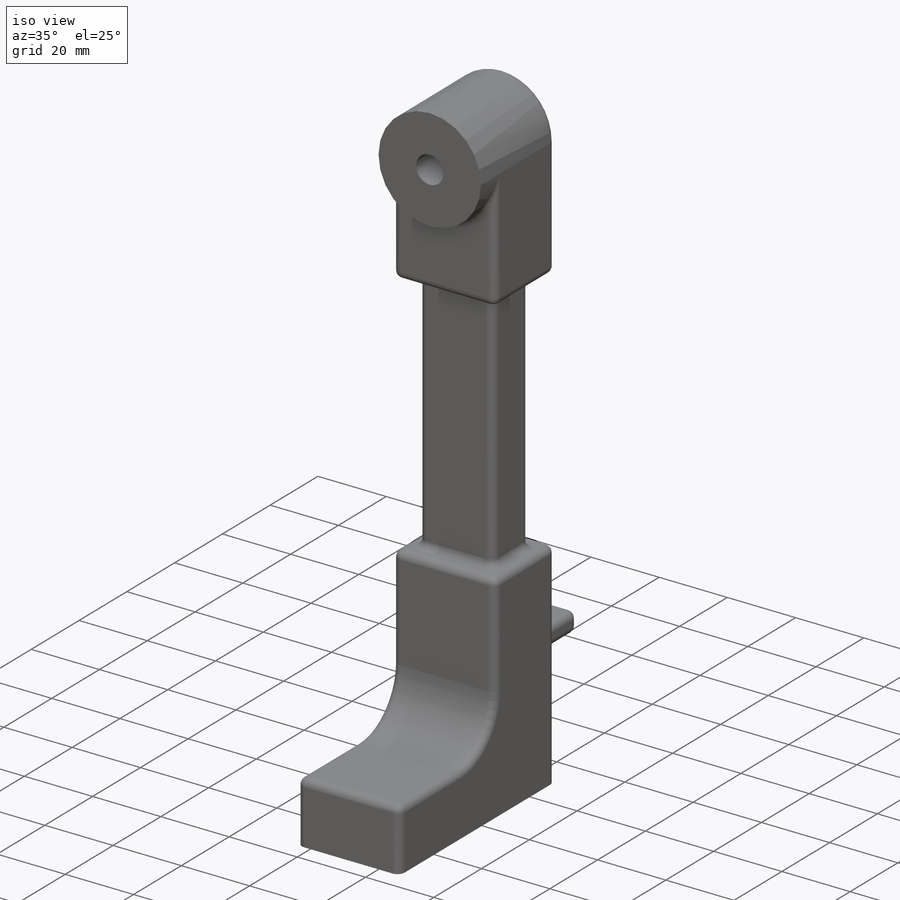
[diagram: iso view]
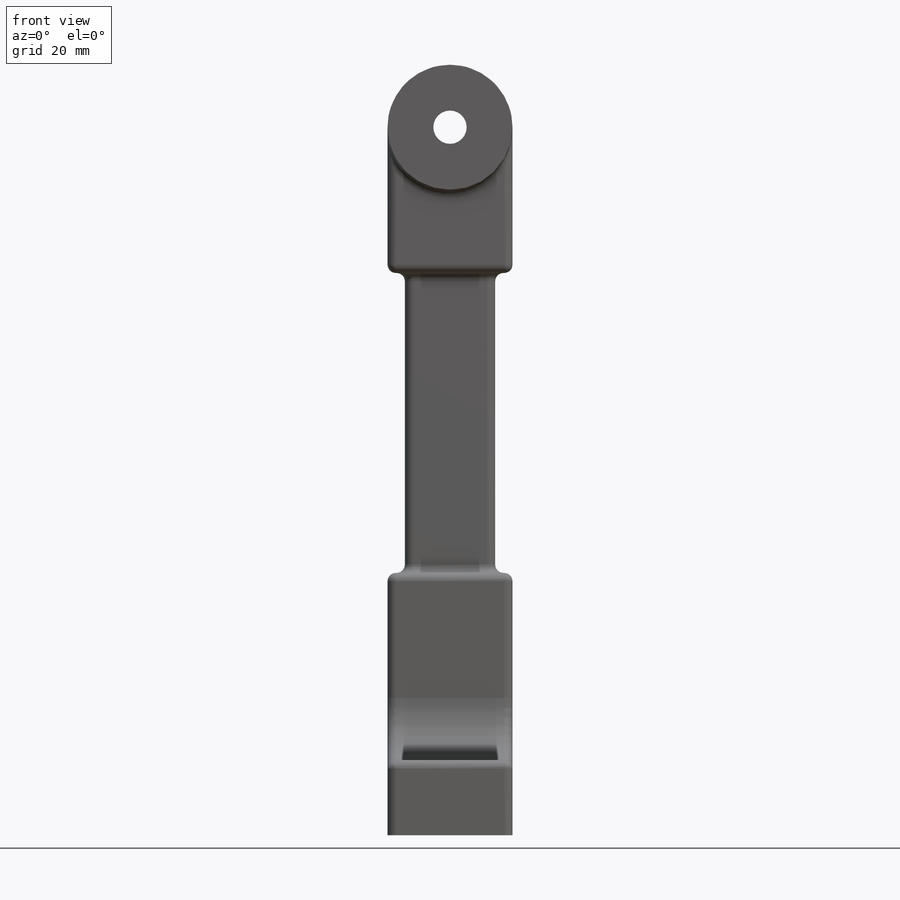
[diagram: front view]
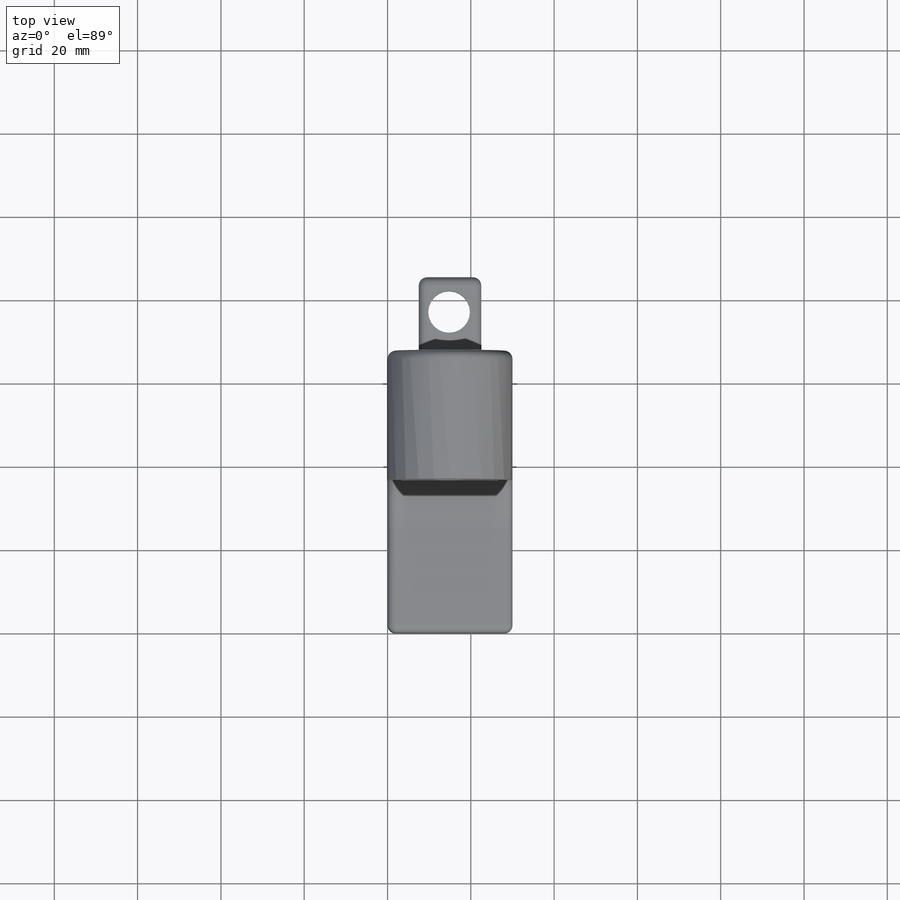
[diagram: top view]
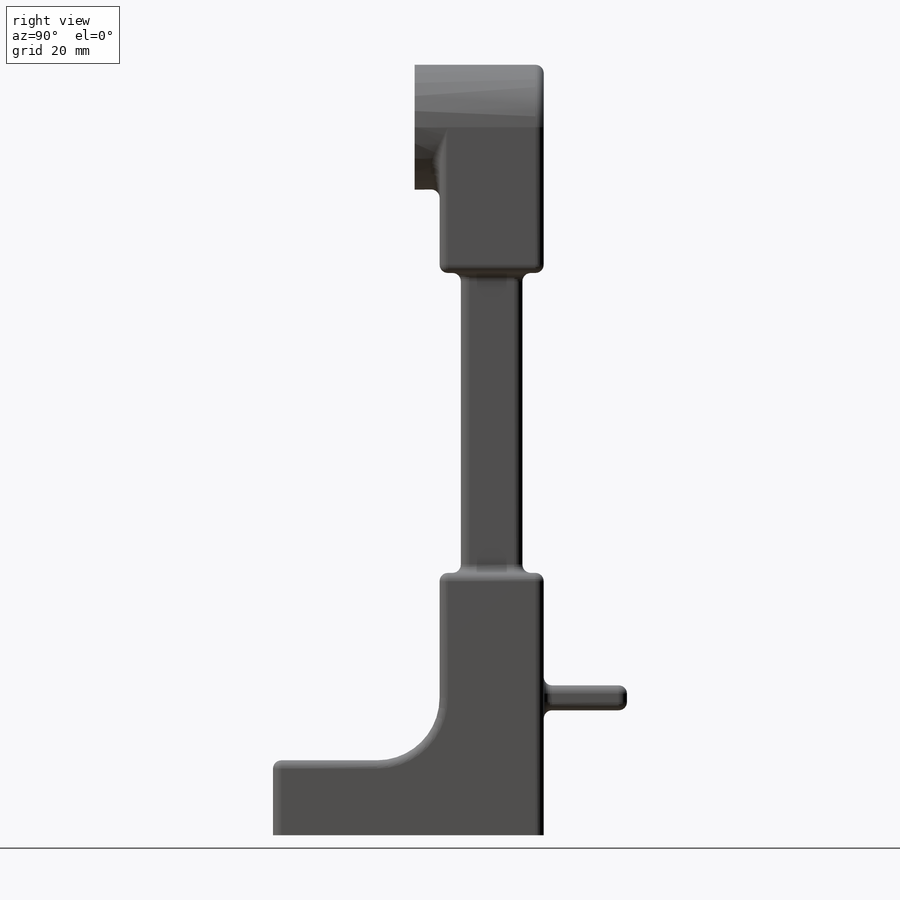
[diagram: right view]
SOLIDWORKS PART (.sldprt)
format: sldprt  version: not decoded by parser v0  size: 380,928 bytes
history: native  units: mm
features: sketch x8, extrude x5, cut_extrude x3, fillet x3, material x1 (+13 scaffold rows collapsed)
feature tree (33):
  scaffold x13  (default folders/planes/origin — collapsed)
  material  "Material <not specified>"
  sketch  "Sketch1"  dims[D1=30.0mm D2=65.0mm]
  extrude  "Boss-Extrude1"  Depth=63mm
  sketch  "Sketch2"  dims[D3=15.0mm D1=18.0mm D2=25.0mm]
  cut_extrude  "Cut-Extrude1"  Depth=63mm
  sketch  "Sketch3"
  extrude  "Boss-Extrude2"  Depth=72mm
  sketch  "Sketch4"  dims[D1=30.0mm D2=25.0mm]
  extrude  "Boss-Extrude3"  Depth=50mm
  fillet  "Fillet1"  Radius=15mm
  sketch  "Sketch6"
  extrude  "Boss-Extrude4"  Depth=6mm
  sketch  "Sketch7"  dims[D1=8.0mm]
  cut_extrude  "Cut-Extrude2"  [1 undecoded]
  fillet  "Fillet2"  Radius=2mm
  sketch  "Sketch8"  dims[c1.D1=6.0mm c1.D2=15.0mm c1.D3=30.0mm c1.D4=15.0mm c2.D4=90.0deg c3.D4=7.5mm]
  extrude  "Boss-Extrude5"  Depth=20mm
  sketch  "Sketch9"  dims[D1=10.0mm]
  cut_extrude  "Cut-Extrude3"  Depth=20mm
  fillet  "Fillet3"  Radius=2mm
decode coverage: 16 of 19 modeling features carry decoded parameters
note: 1 parameter value undecoded
note: suppression state not decoded; provenance and decode notes live in map.json
